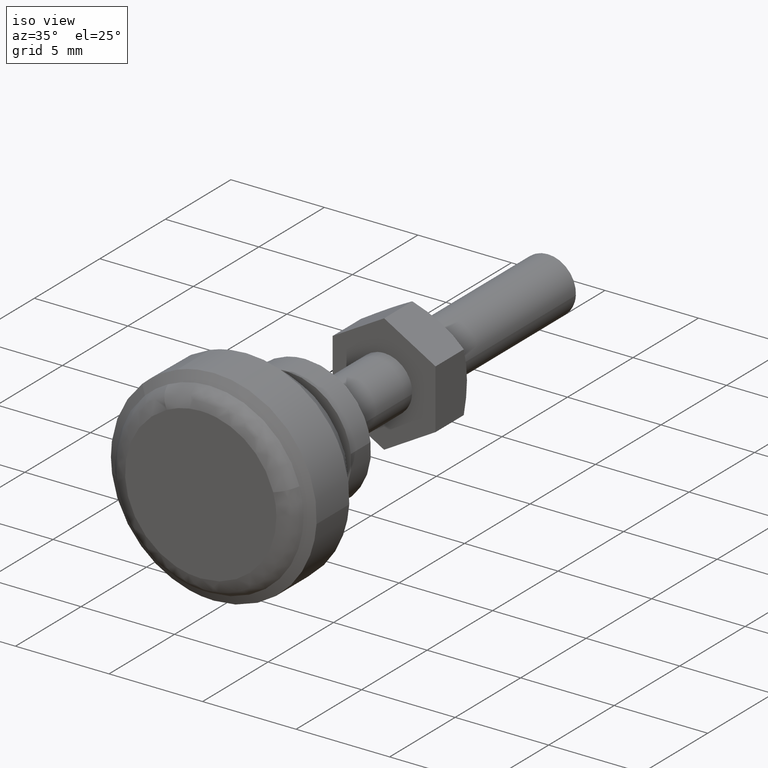
[diagram: clean part render]
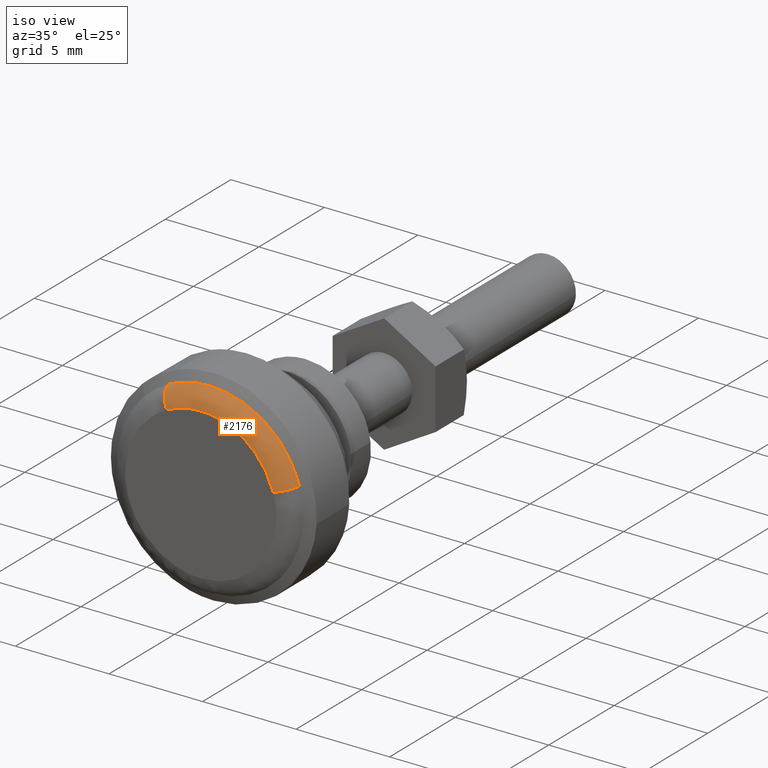
[diagram: same view with one face highlighted and labeled with its STEP entity id]
A machine part, iso view. The second image highlights one B-rep face of the part: STEP entity #2176.
In plain terms, the highlighted face is a freeform B-spline surface patch.
Its self-contained STEP definition (entity closure, byte-faithful):
#965=CARTESIAN_POINT('',(-7.300043298117771,2.239675876547978,4.470246951859167));
#966=VERTEX_POINT('',#965);
#980=CARTESIAN_POINT('',(-7.300044964200700,0.0,4.999925059665491));
#981=VERTEX_POINT('',#980);
#982=CARTESIAN_POINT('',(-7.300044964200700,0.0,4.999925059665491));
#983=CARTESIAN_POINT('',(-7.300044131159235,1.182471872623041,4.999925293927997));
#984=CARTESIAN_POINT('',(-7.300043298117771,2.239675876547978,4.470246951859168));
#992=(BOUNDED_CURVE()B_SPLINE_CURVE(2,(#982,#983,#984),.UNSPECIFIED.,.F.,.U.)B_SPLINE_CURVE_WITH_KNOTS((3,3),(0.0,0.076154490571095),.UNSPECIFIED.)CURVE()GEOMETRIC_REPRESENTATION_ITEM()RATIONAL_B_SPLINE_CURVE((1.0,0.910779464518133,0.875915284461081))REPRESENTATION_ITEM(''));
#993=EDGE_CURVE('',#981,#966,#992,.T.);
#995=CARTESIAN_POINT('',(-7.300044120854977,-4.792539267084807,1.425068639843454));
#996=VERTEX_POINT('',#995);
#997=CARTESIAN_POINT('',(-7.300044120854977,-4.792539267084807,1.425068639843454));
#998=CARTESIAN_POINT('',(-7.300044964200699,-3.729550146246090,4.999925059665491));
#999=CARTESIAN_POINT('',(-7.300044964200700,0.0,4.999925059665491));
#1007=(BOUNDED_CURVE()B_SPLINE_CURVE(2,(#997,#998,#999),.UNSPECIFIED.,.F.,.U.)B_SPLINE_CURVE_WITH_KNOTS((3,3),(0.798526448006798,1.0),.UNSPECIFIED.)CURVE()GEOMETRIC_REPRESENTATION_ITEM()RATIONAL_B_SPLINE_CURVE((0.908366169443741,0.763959051403726,1.0))REPRESENTATION_ITEM(''));
#1008=EDGE_CURVE('',#996,#981,#1007,.T.);
#2048=CARTESIAN_POINT('',(-8.0,-3.878179158615084,1.153187936053274));
#2049=VERTEX_POINT('',#2048);
#2050=CARTESIAN_POINT('',(-7.300044120854977,-4.792539267084807,1.425068639843454));
#2051=CARTESIAN_POINT('',(-7.999999999604183,-4.581508706328640,1.362321561061724));
#2052=CARTESIAN_POINT('',(-8.0,-3.878179158615084,1.153187936053274));
#2060=(BOUNDED_CURVE()B_SPLINE_CURVE(2,(#2050,#2051,#2052),.UNSPECIFIED.,.F.,.U.)B_SPLINE_CURVE_WITH_KNOTS((3,3),(-1.684108354262538,-0.312243931372494),.UNSPECIFIED.)CURVE()GEOMETRIC_REPRESENTATION_ITEM()RATIONAL_B_SPLINE_CURVE((0.901226770552418,0.726979023985935,0.902155871921015))REPRESENTATION_ITEM(''));
#2061=EDGE_CURVE('',#996,#2049,#2060,.T.);
#2080=CARTESIAN_POINT('',(-8.0,1.812375492571479,3.617376269739627));
#2081=VERTEX_POINT('',#2080);
#2097=CARTESIAN_POINT('',(-7.300043298117772,2.239675876547979,4.470246951859167));
#2098=CARTESIAN_POINT('',(-7.999999999464508,2.141058079623870,4.273408323990284));
#2099=CARTESIAN_POINT('',(-8.0,1.812375492571478,3.617376269739628));
#2107=(BOUNDED_CURVE()B_SPLINE_CURVE(2,(#2097,#2098,#2099),.UNSPECIFIED.,.F.,.U.)B_SPLINE_CURVE_WITH_KNOTS((3,3),(-1.684109353766654,-0.312243931594380),.UNSPECIFIED.)CURVE()GEOMETRIC_REPRESENTATION_ITEM()RATIONAL_B_SPLINE_CURVE((0.845477978860571,0.682008674074095,0.846349368651551))REPRESENTATION_ITEM(''));
#2108=EDGE_CURVE('',#966,#2081,#2107,.T.);
#2113=CARTESIAN_POINT('',(-7.243710634318105,-4.819086433311925,1.391655562605080));
#2114=CARTESIAN_POINT('',(-7.243710634318105,-4.813452254561944,1.410603345461145));
#2115=CARTESIAN_POINT('',(-7.243710634318107,-3.378186295088951,6.237412885517103));
#2116=CARTESIAN_POINT('',(-7.243710634318105,1.429613295214076,4.807799590303027));
#2117=CARTESIAN_POINT('',(-7.243710634318104,1.852428997368171,4.682074102401258));
#2118=CARTESIAN_POINT('',(-7.243710634318102,2.265765013998645,4.474984850917692));
#2119=CARTESIAN_POINT('',(-7.243710634318104,2.284769648213530,4.465463165615833));
#2120=CARTESIAN_POINT('',(-8.046684951114346,-4.625224377858983,1.335672086985255));
#2121=CARTESIAN_POINT('',(-8.046684951114347,-4.619816850672191,1.353857639036460));
#2122=CARTESIAN_POINT('',(-8.046684951114347,-3.242288724474342,5.986494438747515));
#2123=CARTESIAN_POINT('',(-8.046684951114347,1.372102857136586,4.614391581610928));
#2124=CARTESIAN_POINT('',(-8.046684951114346,1.777909542699742,4.493723774629548));
#2125=CARTESIAN_POINT('',(-8.046684951114346,2.174617891226399,4.294965302954641));
#2126=CARTESIAN_POINT('',(-8.046684951114346,2.192858007621775,4.285826655705646));
#2127=CARTESIAN_POINT('',(-7.998290214066615,-3.831124467614993,1.106351950762725));
#2128=CARTESIAN_POINT('',(-7.998290214066615,-3.826645353085159,1.121415244503450));
#2129=CARTESIAN_POINT('',(-7.998290214066615,-2.685623582472732,4.958679503056521));
#2130=CARTESIAN_POINT('',(-7.998290214066615,1.136527960291893,3.822151542764626));
#2131=CARTESIAN_POINT('',(-7.998290214066615,1.472662122696015,3.722201064687754));
#2132=CARTESIAN_POINT('',(-7.998290214066615,1.801260031982991,3.557567226030184));
#2133=CARTESIAN_POINT('',(-7.998290214066615,1.816368521973006,3.549997583518540));
#2141=(BOUNDED_SURFACE()B_SPLINE_SURFACE(2,2,((#2113,#2120,#2127),(#2114,#2121,#2128),(#2115,#2122,#2129),(#2116,#2123,#2130),(#2117,#2124,#2131),(#2118,#2125,#2132),(#2119,#2126,#2133)),.UNSPECIFIED.,.F.,.F.,.U.)B_SPLINE_SURFACE_WITH_KNOTS((3,1,2,1,3),(3,3),(0.0,0.046546834411596,8.357075894024755,9.354338430113758,9.400878382070573),(0.0,1.441015618307575),.UNSPECIFIED.)GEOMETRIC_REPRESENTATION_ITEM()RATIONAL_B_SPLINE_SURFACE(((0.922523121666320,0.710978316960770,0.923548134543539),(0.921014690541888,0.709815785857850,0.922038027405476),(0.650189111377560,0.501093521947129,0.650911534692638),(0.919506259417456,0.708653254754931,0.920527920267413),(0.887188232473570,0.683746110571321,0.888173984853587),(0.861480286108255,0.663933282025284,0.862437474460496),(0.860334047617303,0.663049888759583,0.861289962387141)))REPRESENTATION_ITEM('')SURFACE());
#2142=ORIENTED_EDGE('',*,*,#993,.T.);
#2143=ORIENTED_EDGE('',*,*,#2108,.T.);
#2144=CARTESIAN_POINT('',(-8.0,0.0,4.046000000000000));
#2145=VERTEX_POINT('',#2144);
#2146=CARTESIAN_POINT('',(-8.0,0.0,4.046000000000000));
#2147=CARTESIAN_POINT('',(-8.0,0.956872138934637,4.046000000000000));
#2148=CARTESIAN_POINT('',(-8.000000000000002,1.812375492571478,3.617376269739627));
#2156=(BOUNDED_CURVE()B_SPLINE_CURVE(2,(#2146,#2147,#2148),.UNSPECIFIED.,.F.,.U.)B_SPLINE_CURVE_WITH_KNOTS((3,3),(0.0,0.076154610386839),.UNSPECIFIED.)CURVE()GEOMETRIC_REPRESENTATION_ITEM()RATIONAL_B_SPLINE_CURVE((1.0,0.910779324145257,0.875915174755862))REPRESENTATION_ITEM(''));
#2157=EDGE_CURVE('',#2145,#2081,#2156,.T.);
#2158=ORIENTED_EDGE('',*,*,#2157,.F.);
#2159=CARTESIAN_POINT('',(-8.0,-3.878179158615084,1.153187936053274));
#2160=CARTESIAN_POINT('',(-8.0,-3.017993015032055,4.046000000000001));
#2161=CARTESIAN_POINT('',(-8.0,0.0,4.046000000000000));
#2169=(BOUNDED_CURVE()B_SPLINE_CURVE(2,(#2159,#2160,#2161),.UNSPECIFIED.,.F.,.U.)B_SPLINE_CURVE_WITH_KNOTS((3,3),(0.798526662066406,1.0),.UNSPECIFIED.)CURVE()GEOMETRIC_REPRESENTATION_ITEM()RATIONAL_B_SPLINE_CURVE((0.908365862587704,0.763959302190157,1.0))REPRESENTATION_ITEM(''));
#2170=EDGE_CURVE('',#2049,#2145,#2169,.T.);
#2171=ORIENTED_EDGE('',*,*,#2170,.F.);
#2172=ORIENTED_EDGE('',*,*,#2061,.F.);
#2173=ORIENTED_EDGE('',*,*,#1008,.T.);
#2174=EDGE_LOOP('',(#2142,#2143,#2158,#2171,#2172,#2173));
#2175=FACE_OUTER_BOUND('',#2174,.T.);
#2176=ADVANCED_FACE('',(#2175),#2141,.T.);